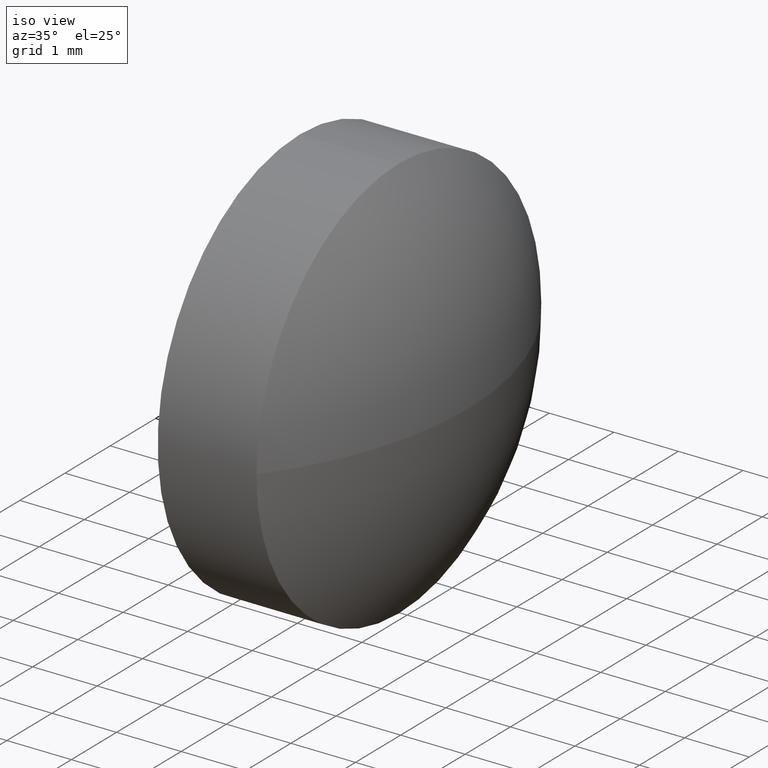
[diagram: clean part render]
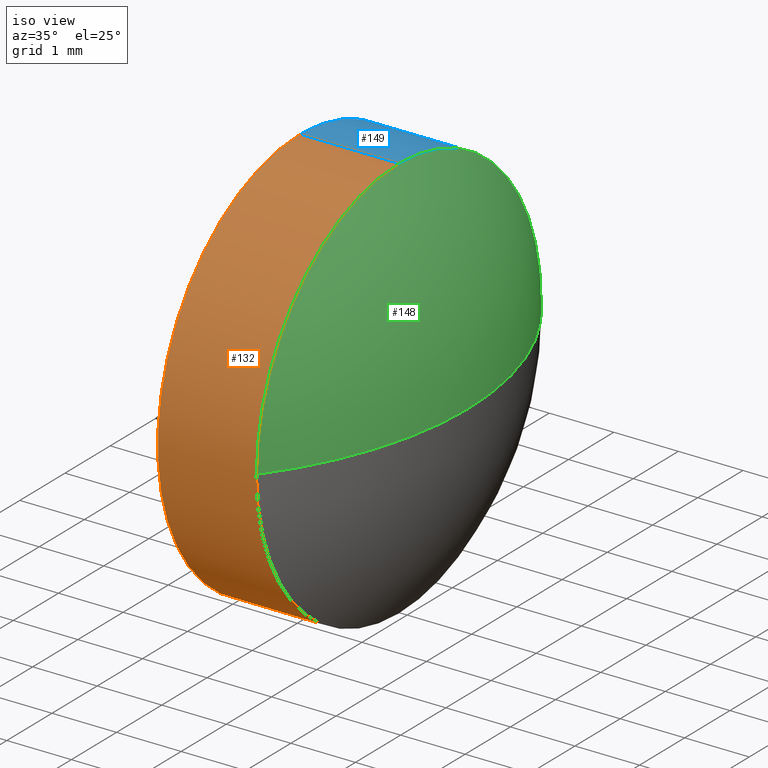
[diagram: same view with three faces highlighted in distinct colors, each labeled with its STEP entity id]
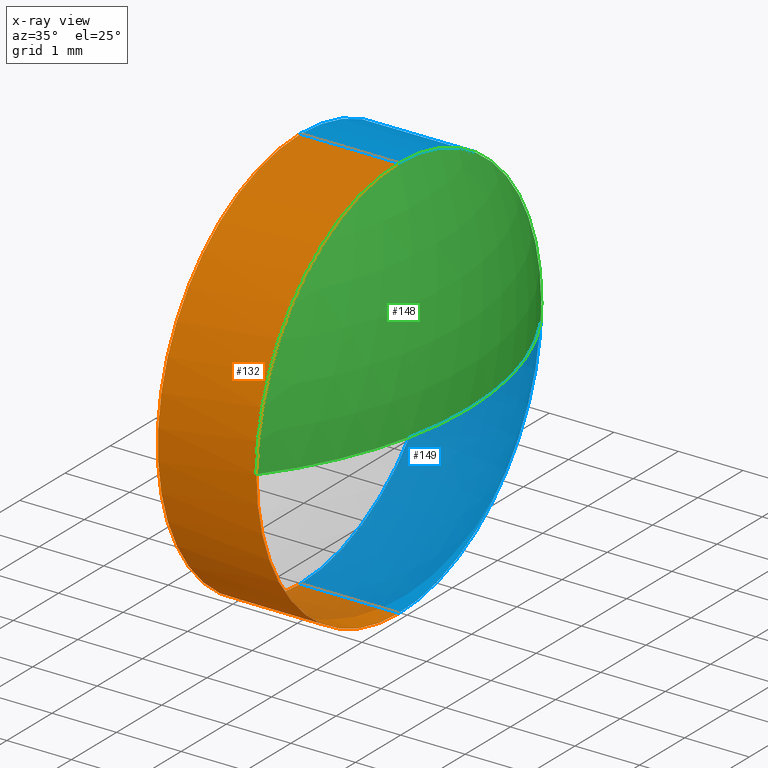
[diagram: x-ray of the same camera — body ghosted, the three highlighted faces saturated]
A machine part, iso view with three faces highlighted in distinct colors.
The next image is the same camera in x-ray (body ghosted, the three faces saturated) — at least one of them is partly hidden behind the body in this view.
Their STEP definitions:

[orange] entity #132 — the highlighted cylindrical surface (partial cylindrical patch) has radius 3.15 mm, axis along (-1, -0, -0).
#3 = VERTEX_POINT ( 'NONE', #169 ) ;
#7 = AXIS2_PLACEMENT_3D ( 'NONE', #24, #161, #156 ) ;
#11 = CARTESIAN_POINT ( 'NONE',  ( 411.5273895783834600, -154.2646771104562600, 3.150000000000013700 ) ) ;
#12 = CARTESIAN_POINT ( 'NONE',  ( 413.0573895783834900, -154.2646771104562600, 0.0000000000000000000 ) ) ;
#24 = CARTESIAN_POINT ( 'NONE',  ( 413.0573895783834900, -154.2646771104562600, 0.0000000000000000000 ) ) ;
#26 = DIRECTION ( 'NONE',  ( -1.000000000000000000, -0.0000000000000000000, -0.0000000000000000000 ) ) ;
#29 = VERTEX_POINT ( 'NONE', #54 ) ;
#31 = VERTEX_POINT ( 'NONE', #38 ) ;
#32 = VECTOR ( 'NONE', #26, 1000.000000000000000 ) ;
#33 = LINE ( 'NONE', #136, #145 ) ;
#38 = CARTESIAN_POINT ( 'NONE',  ( 413.0573895783834900, -154.2646771104562600, 3.150000000000013700 ) ) ;
#45 = CIRCLE ( 'NONE', #7, 3.150000000000013700 ) ;
#46 = ORIENTED_EDGE ( 'NONE', *, *, #174, .T. ) ;
#47 = CIRCLE ( 'NONE', #95, 3.150000000000013700 ) ;
#48 = VERTEX_POINT ( 'NONE', #11 ) ;
#52 = EDGE_CURVE ( 'NONE', #31, #48, #33, .T. ) ;
#54 = CARTESIAN_POINT ( 'NONE',  ( 413.0573895783834900, -154.2646771104562600, -3.150000000000013700 ) ) ;
#57 = CARTESIAN_POINT ( 'NONE',  ( 410.7216791658415800, -154.2646771104562600, 0.0000000000000000000 ) ) ;
#60 = AXIS2_PLACEMENT_3D ( 'NONE', #128, #140, #82 ) ;
#72 = ORIENTED_EDGE ( 'NONE', *, *, #181, .F. ) ;
#75 = CIRCLE ( 'NONE', #60, 3.150000000000013700 ) ;
#82 = DIRECTION ( 'NONE',  ( 0.0000000000000000000, 0.0000000000000000000, 1.000000000000000000 ) ) ;
#91 = CARTESIAN_POINT ( 'NONE',  ( 410.7216791658415800, -154.2646771104562600, -3.150000000000013700 ) ) ;
#95 = AXIS2_PLACEMENT_3D ( 'NONE', #12, #139, #107 ) ;
#99 = ORIENTED_EDGE ( 'NONE', *, *, #52, .T. ) ;
#100 = VERTEX_POINT ( 'NONE', #166 ) ;
#107 = DIRECTION ( 'NONE',  ( 0.0000000000000000000, 0.0000000000000000000, 1.000000000000000000 ) ) ;
#111 = DIRECTION ( 'NONE',  ( 0.0000000000000000000, 0.0000000000000000000, 1.000000000000000000 ) ) ;
#119 = AXIS2_PLACEMENT_3D ( 'NONE', #57, #175, #111 ) ;
#124 = DIRECTION ( 'NONE',  ( -1.000000000000000000, -0.0000000000000000000, -0.0000000000000000000 ) ) ;
#128 = CARTESIAN_POINT ( 'NONE',  ( 411.5273895783834600, -154.2646771104562600, 0.0000000000000000000 ) ) ;
#132 = ADVANCED_FACE ( 'NONE', ( #133 ), #167, .T. ) ;
#133 = FACE_OUTER_BOUND ( 'NONE', #179, .T. ) ;
#136 = CARTESIAN_POINT ( 'NONE',  ( 410.7216791658415800, -154.2646771104562600, 3.150000000000013700 ) ) ;
#137 = ORIENTED_EDGE ( 'NONE', *, *, #164, .F. ) ;
#139 = DIRECTION ( 'NONE',  ( -1.000000000000000000, -0.0000000000000000000, -0.0000000000000000000 ) ) ;
#140 = DIRECTION ( 'NONE',  ( -1.000000000000000000, -0.0000000000000000000, -0.0000000000000000000 ) ) ;
#145 = VECTOR ( 'NONE', #124, 1000.000000000000000 ) ;
#156 = DIRECTION ( 'NONE',  ( 0.0000000000000000000, 0.0000000000000000000, 1.000000000000000000 ) ) ;
#161 = DIRECTION ( 'NONE',  ( -1.000000000000000000, -0.0000000000000000000, -0.0000000000000000000 ) ) ;
#164 = EDGE_CURVE ( 'NONE', #29, #3, #165, .T. ) ;
#165 = LINE ( 'NONE', #91, #32 ) ;
#166 = CARTESIAN_POINT ( 'NONE',  ( 413.0573895783834900, -157.4146771104563200, -3.857637417314178500E-016 ) ) ;
#167 = CYLINDRICAL_SURFACE ( 'NONE', #119, 3.150000000000013700 ) ;
#169 = CARTESIAN_POINT ( 'NONE',  ( 411.5273895783834600, -154.2646771104562600, -3.150000000000013700 ) ) ;
#174 = EDGE_CURVE ( 'NONE', #29, #100, #47, .T. ) ;
#175 = DIRECTION ( 'NONE',  ( -1.000000000000000000, -0.0000000000000000000, -0.0000000000000000000 ) ) ;
#178 = ORIENTED_EDGE ( 'NONE', *, *, #186, .T. ) ;
#179 = EDGE_LOOP ( 'NONE', ( #137, #46, #178, #99, #72 ) ) ;
#181 = EDGE_CURVE ( 'NONE', #3, #48, #75, .T. ) ;
#186 = EDGE_CURVE ( 'NONE', #100, #31, #45, .T. ) ;

[blue] entity #149 — the highlighted cylindrical surface (partial cylindrical patch) has radius 3.15 mm, axis along (-1, -0, -0).
#2 = DIRECTION ( 'NONE',  ( -1.000000000000000000, -0.0000000000000000000, -0.0000000000000000000 ) ) ;
#3 = VERTEX_POINT ( 'NONE', #169 ) ;
#9 = ORIENTED_EDGE ( 'NONE', *, *, #52, .F. ) ;
#11 = CARTESIAN_POINT ( 'NONE',  ( 411.5273895783834600, -154.2646771104562600, 3.150000000000013700 ) ) ;
#18 = EDGE_CURVE ( 'NONE', #48, #3, #41, .T. ) ;
#20 = CIRCLE ( 'NONE', #28, 3.150000000000013700 ) ;
#21 = CARTESIAN_POINT ( 'NONE',  ( 413.0573895783834900, -154.2646771104562600, 0.0000000000000000000 ) ) ;
#25 = DIRECTION ( 'NONE',  ( 0.0000000000000000000, 0.0000000000000000000, 1.000000000000000000 ) ) ;
#26 = DIRECTION ( 'NONE',  ( -1.000000000000000000, -0.0000000000000000000, -0.0000000000000000000 ) ) ;
#28 = AXIS2_PLACEMENT_3D ( 'NONE', #21, #2, #185 ) ;
#29 = VERTEX_POINT ( 'NONE', #54 ) ;
#31 = VERTEX_POINT ( 'NONE', #38 ) ;
#32 = VECTOR ( 'NONE', #26, 1000.000000000000000 ) ;
#33 = LINE ( 'NONE', #136, #145 ) ;
#37 = ORIENTED_EDGE ( 'NONE', *, *, #18, .F. ) ;
#38 = CARTESIAN_POINT ( 'NONE',  ( 413.0573895783834900, -154.2646771104562600, 3.150000000000013700 ) ) ;
#41 = CIRCLE ( 'NONE', #61, 3.150000000000013700 ) ;
#48 = VERTEX_POINT ( 'NONE', #11 ) ;
#49 = AXIS2_PLACEMENT_3D ( 'NONE', #127, #109, #141 ) ;
#52 = EDGE_CURVE ( 'NONE', #31, #48, #33, .T. ) ;
#54 = CARTESIAN_POINT ( 'NONE',  ( 413.0573895783834900, -154.2646771104562600, -3.150000000000013700 ) ) ;
#61 = AXIS2_PLACEMENT_3D ( 'NONE', #76, #184, #134 ) ;
#69 = CARTESIAN_POINT ( 'NONE',  ( 410.7216791658415800, -154.2646771104562600, 0.0000000000000000000 ) ) ;
#71 = DIRECTION ( 'NONE',  ( -1.000000000000000000, -0.0000000000000000000, -0.0000000000000000000 ) ) ;
#73 = ORIENTED_EDGE ( 'NONE', *, *, #164, .T. ) ;
#76 = CARTESIAN_POINT ( 'NONE',  ( 411.5273895783834600, -154.2646771104562600, 0.0000000000000000000 ) ) ;
#80 = CYLINDRICAL_SURFACE ( 'NONE', #163, 3.150000000000013700 ) ;
#86 = FACE_OUTER_BOUND ( 'NONE', #143, .T. ) ;
#91 = CARTESIAN_POINT ( 'NONE',  ( 410.7216791658415800, -154.2646771104562600, -3.150000000000013700 ) ) ;
#97 = CIRCLE ( 'NONE', #49, 3.150000000000013700 ) ;
#109 = DIRECTION ( 'NONE',  ( -1.000000000000000000, -0.0000000000000000000, -0.0000000000000000000 ) ) ;
#115 = VERTEX_POINT ( 'NONE', #182 ) ;
#116 = EDGE_CURVE ( 'NONE', #31, #115, #20, .T. ) ;
#121 = EDGE_CURVE ( 'NONE', #115, #29, #97, .T. ) ;
#123 = ORIENTED_EDGE ( 'NONE', *, *, #116, .T. ) ;
#124 = DIRECTION ( 'NONE',  ( -1.000000000000000000, -0.0000000000000000000, -0.0000000000000000000 ) ) ;
#127 = CARTESIAN_POINT ( 'NONE',  ( 413.0573895783834900, -154.2646771104562600, 0.0000000000000000000 ) ) ;
#134 = DIRECTION ( 'NONE',  ( 0.0000000000000000000, 0.0000000000000000000, 1.000000000000000000 ) ) ;
#136 = CARTESIAN_POINT ( 'NONE',  ( 410.7216791658415800, -154.2646771104562600, 3.150000000000013700 ) ) ;
#141 = DIRECTION ( 'NONE',  ( 0.0000000000000000000, 0.0000000000000000000, 1.000000000000000000 ) ) ;
#143 = EDGE_LOOP ( 'NONE', ( #162, #73, #37, #9, #123 ) ) ;
#145 = VECTOR ( 'NONE', #124, 1000.000000000000000 ) ;
#149 = ADVANCED_FACE ( 'NONE', ( #86 ), #80, .T. ) ;
#162 = ORIENTED_EDGE ( 'NONE', *, *, #121, .T. ) ;
#163 = AXIS2_PLACEMENT_3D ( 'NONE', #69, #71, #25 ) ;
#164 = EDGE_CURVE ( 'NONE', #29, #3, #165, .T. ) ;
#165 = LINE ( 'NONE', #91, #32 ) ;
#169 = CARTESIAN_POINT ( 'NONE',  ( 411.5273895783834600, -154.2646771104562600, -3.150000000000013700 ) ) ;
#182 = CARTESIAN_POINT ( 'NONE',  ( 413.0573895783834900, -151.1146771104562600, 0.0000000000000000000 ) ) ;
#184 = DIRECTION ( 'NONE',  ( -1.000000000000000000, -0.0000000000000000000, -0.0000000000000000000 ) ) ;
#185 = DIRECTION ( 'NONE',  ( 0.0000000000000000000, 0.0000000000000000000, 1.000000000000000000 ) ) ;

[green] entity #148 — the highlighted spherical surface has radius 5.1717 mm.
#2 = DIRECTION ( 'NONE',  ( -1.000000000000000000, -0.0000000000000000000, -0.0000000000000000000 ) ) ;
#4 = ORIENTED_EDGE ( 'NONE', *, *, #186, .F. ) ;
#6 = CIRCLE ( 'NONE', #147, 5.171682242990693900 ) ;
#7 = AXIS2_PLACEMENT_3D ( 'NONE', #24, #161, #156 ) ;
#10 = CARTESIAN_POINT ( 'NONE',  ( 408.9557073353928400, -154.2646771104562900, 0.0000000000000000000 ) ) ;
#14 = EDGE_CURVE ( 'NONE', #183, #115, #87, .T. ) ;
#20 = CIRCLE ( 'NONE', #28, 3.150000000000013700 ) ;
#21 = CARTESIAN_POINT ( 'NONE',  ( 413.0573895783834900, -154.2646771104562600, 0.0000000000000000000 ) ) ;
#24 = CARTESIAN_POINT ( 'NONE',  ( 413.0573895783834900, -154.2646771104562600, 0.0000000000000000000 ) ) ;
#28 = AXIS2_PLACEMENT_3D ( 'NONE', #21, #2, #185 ) ;
#31 = VERTEX_POINT ( 'NONE', #38 ) ;
#38 = CARTESIAN_POINT ( 'NONE',  ( 413.0573895783834900, -154.2646771104562600, 3.150000000000013700 ) ) ;
#42 = DIRECTION ( 'NONE',  ( 0.0000000000000000000, 1.000000000000000000, 0.0000000000000000000 ) ) ;
#45 = CIRCLE ( 'NONE', #7, 3.150000000000013700 ) ;
#50 = FACE_OUTER_BOUND ( 'NONE', #65, .T. ) ;
#56 = SPHERICAL_SURFACE ( 'NONE', #135, 5.171682242990696600 ) ;
#65 = EDGE_LOOP ( 'NONE', ( #89, #103, #168, #4 ) ) ;
#66 = CARTESIAN_POINT ( 'NONE',  ( 414.1273895783835400, -154.2646771104562900, 0.0000000000000000000 ) ) ;
#87 = CIRCLE ( 'NONE', #130, 5.171682242990693900 ) ;
#89 = ORIENTED_EDGE ( 'NONE', *, *, #152, .F. ) ;
#94 = CARTESIAN_POINT ( 'NONE',  ( 408.9557073353928400, -154.2646771104562900, 0.0000000000000000000 ) ) ;
#100 = VERTEX_POINT ( 'NONE', #166 ) ;
#103 = ORIENTED_EDGE ( 'NONE', *, *, #14, .T. ) ;
#106 = DIRECTION ( 'NONE',  ( -0.0000000000000000000, 0.0000000000000000000, 1.000000000000000000 ) ) ;
#113 = DIRECTION ( 'NONE',  ( 0.0000000000000000000, 1.000000000000000000, 1.224646799147353900E-016 ) ) ;
#115 = VERTEX_POINT ( 'NONE', #182 ) ;
#116 = EDGE_CURVE ( 'NONE', #31, #115, #20, .T. ) ;
#130 = AXIS2_PLACEMENT_3D ( 'NONE', #10, #106, #170 ) ;
#135 = AXIS2_PLACEMENT_3D ( 'NONE', #94, #173, #42 ) ;
#147 = AXIS2_PLACEMENT_3D ( 'NONE', #160, #176, #113 ) ;
#148 = ADVANCED_FACE ( 'NONE', ( #50 ), #56, .T. ) ;
#152 = EDGE_CURVE ( 'NONE', #183, #100, #6, .T. ) ;
#156 = DIRECTION ( 'NONE',  ( 0.0000000000000000000, 0.0000000000000000000, 1.000000000000000000 ) ) ;
#160 = CARTESIAN_POINT ( 'NONE',  ( 408.9557073353928400, -154.2646771104562900, 0.0000000000000000000 ) ) ;
#161 = DIRECTION ( 'NONE',  ( -1.000000000000000000, -0.0000000000000000000, -0.0000000000000000000 ) ) ;
#166 = CARTESIAN_POINT ( 'NONE',  ( 413.0573895783834900, -157.4146771104563200, -3.857637417314178500E-016 ) ) ;
#168 = ORIENTED_EDGE ( 'NONE', *, *, #116, .F. ) ;
#170 = DIRECTION ( 'NONE',  ( 1.000000000000000000, 0.0000000000000000000, 0.0000000000000000000 ) ) ;
#173 = DIRECTION ( 'NONE',  ( -0.0000000000000000000, 0.0000000000000000000, -1.000000000000000000 ) ) ;
#176 = DIRECTION ( 'NONE',  ( 0.0000000000000000000, 1.224646799147353200E-016, -1.000000000000000000 ) ) ;
#182 = CARTESIAN_POINT ( 'NONE',  ( 413.0573895783834900, -151.1146771104562600, 0.0000000000000000000 ) ) ;
#183 = VERTEX_POINT ( 'NONE', #66 ) ;
#185 = DIRECTION ( 'NONE',  ( 0.0000000000000000000, 0.0000000000000000000, 1.000000000000000000 ) ) ;
#186 = EDGE_CURVE ( 'NONE', #100, #31, #45, .T. ) ;